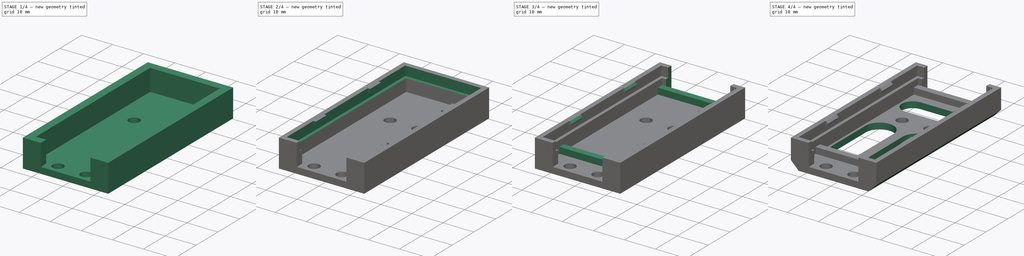
[diagram: build sequence overview — one tinted view per stage of 4, left to right]
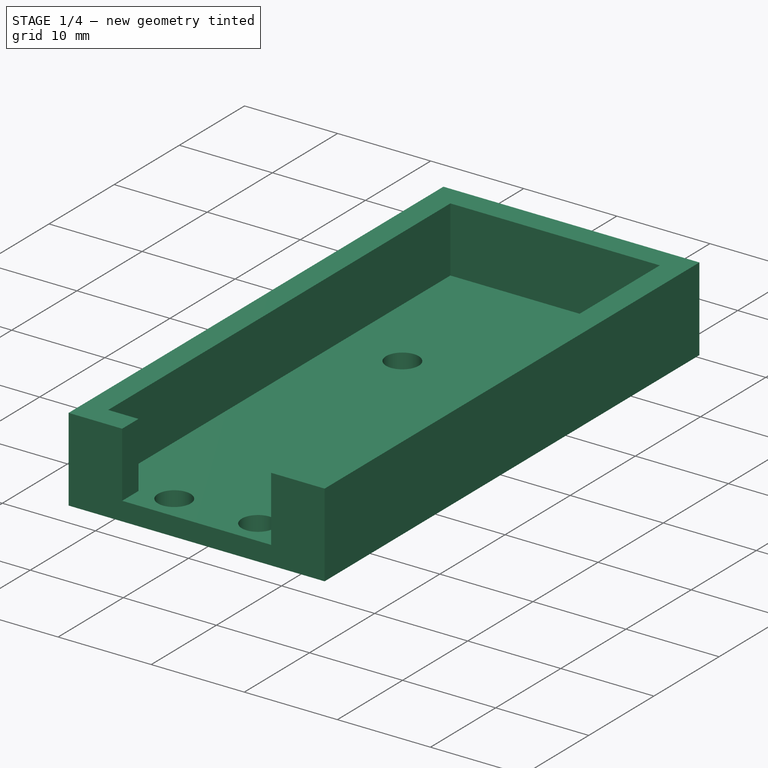
[diagram: stage 1 of 4 — iso view after this stage's code; geometry added in this stage tinted green]
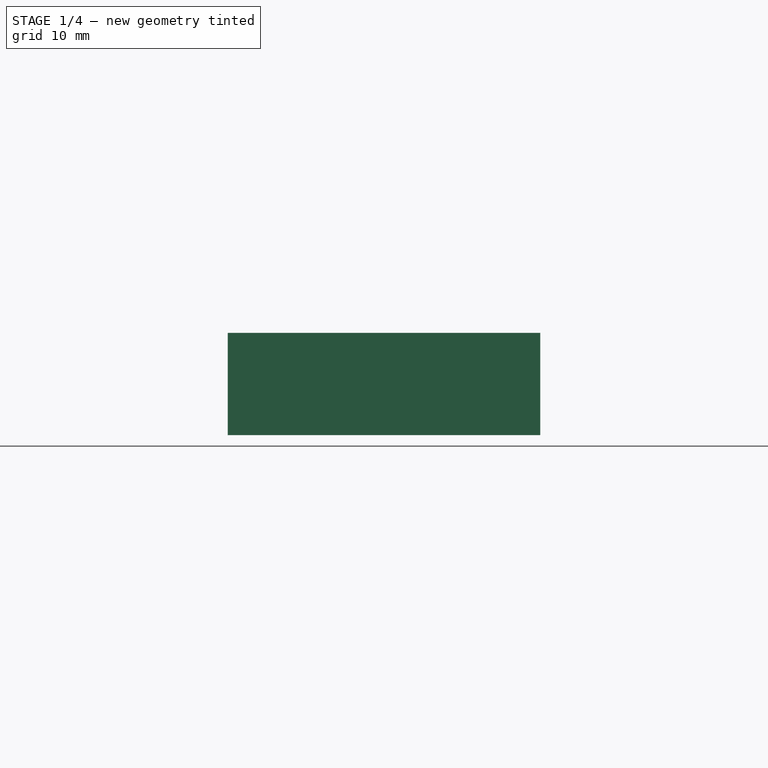
[diagram: stage 1 of 4 — front view after this stage's code; geometry added in this stage tinted green]
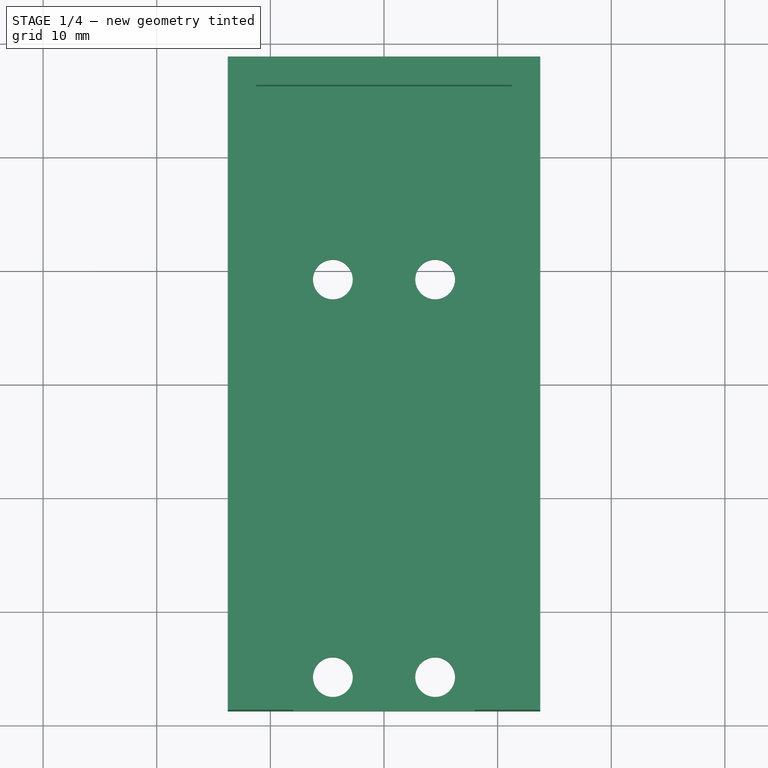
[diagram: stage 1 of 4 — top view after this stage's code; geometry added in this stage tinted green]
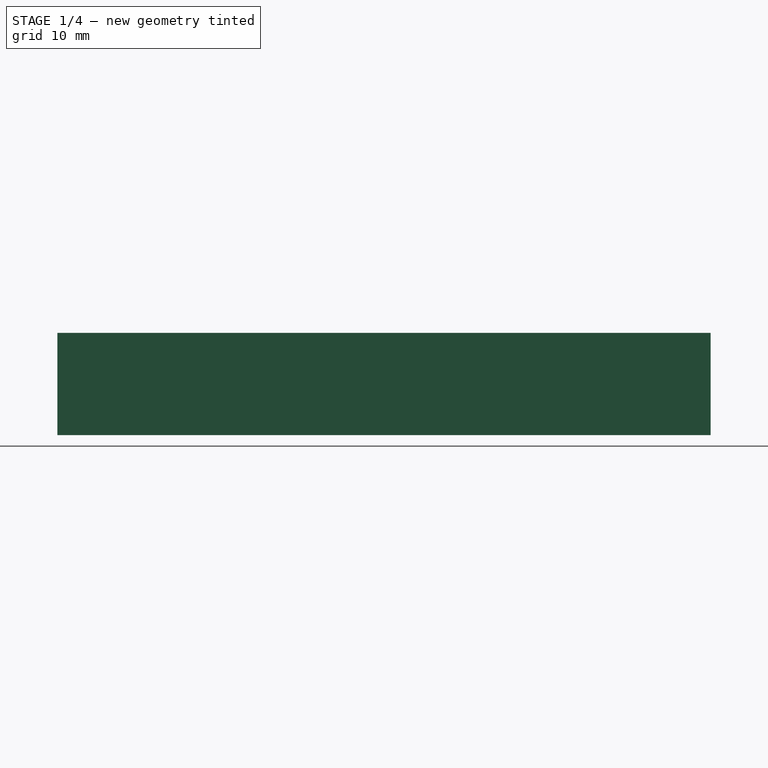
[diagram: stage 1 of 4 — right view after this stage's code; geometry added in this stage tinted green]
FCSTD DOCUMENT  (FreeCAD 0.17R13541 (Git))
Label: AB_dc-dc-holder
License: All rights reserved
LicenseURL: http://en.wikipedia.org/wiki/All_rights_reserved
objects: Sketcher::SketchObject×7, PartDesign::Pocket×4, PartDesign::Pad×3, PartDesign::Chamfer×2, PartDesign::Body×2
note: 25 computed .brp shape members not serialized (recipe doc carries the construction recipe); baked Part::Feature solids carry a one-line shape summary decoded from their .brp

FEATURE [Sketcher::SketchObject] Sketch
  MapMode = 5
  Support = -> [XY_Plane]
  sketch-geometry (12):
    g0: LineSegment StartX=-13.75 StartY=28.75 StartZ=0 EndX=13.75 EndY=28.75 EndZ=0
    g1: LineSegment StartX=13.75 StartY=28.75 StartZ=0 EndX=13.75 EndY=-28.75 EndZ=0
    g2: LineSegment StartX=-13.75 StartY=-28.75 StartZ=0 EndX=-13.75 EndY=28.75 EndZ=0
    g3: LineSegment [constr] StartX=-4.5 StartY=9.25 StartZ=0 EndX=4.5 EndY=9.25 EndZ=0
    g4: LineSegment [constr] StartX=4.5 StartY=9.25 StartZ=0 EndX=4.5 EndY=-25.75 EndZ=0
    g5: LineSegment [constr] StartX=4.5 StartY=-25.75 StartZ=0 EndX=-4.5 EndY=-25.75 EndZ=0
    g6: LineSegment [constr] StartX=-4.5 StartY=-25.75 StartZ=0 EndX=-4.5 EndY=9.25 EndZ=0
    g7: Circle CenterX=-4.5 CenterY=9.25 CenterZ=0 NormalX=0 NormalY=0 NormalZ=1 AngleXU=0 Radius=1.75
    g8: Circle CenterX=-4.5 CenterY=-25.75 CenterZ=0 NormalX=0 NormalY=0 NormalZ=1 AngleXU=0 Radius=1.75
    g9: Circle CenterX=4.5 CenterY=9.25 CenterZ=0 NormalX=0 NormalY=0 NormalZ=1 AngleXU=0 Radius=1.75
    g10: LineSegment StartX=13.75 StartY=-28.75 StartZ=0 EndX=-13.75 EndY=-28.75 EndZ=0
    g11: Circle CenterX=4.5 CenterY=-25.75 CenterZ=0 NormalX=0 NormalY=0 NormalZ=1 AngleXU=0 Radius=1.75
  constraints (31):
    c: Coincident(g0,g1)
    c: Coincident(g10,g2)
    c: Coincident(g2,g0)
    c: Horizontal(g0)
    c: Vertical(g1)
    c: Vertical(g2)
    c: Symmetric(g10,g0,g-1)
    c: Symmetric(g0,g0,g-2)
    c: DistanceX(g0,g0) = 27.5
    c: DistanceY(g1,g1) = 57.5
    c: Coincident(g3,g4)
    c: Coincident(g4,g5)
    c: Coincident(g5,g6)
    c: Coincident(g6,g3)
    c: Horizontal(g3)
    c: Horizontal(g5)
    c: Vertical(g4)
    c: Vertical(g6)
    c: Coincident(g7,g3)
    c: Coincident(g8,g5)
    c: Coincident(g9,g3)
    c: Equal(g8,g9)
    c: Radius(g9) = 1.75
    c: DistanceX(g4,g1) = 9.25
    c: DistanceY(g4,g1) = -3
    c: DistanceX(g5,g5) = 9
    c: DistanceY(g4,g4) = 35
    c: Radius(g7) = 1.75
    c: Coincident(g10,g1)
    c: Coincident(g11,g4)
    c: Equal(g7,g11)
FEATURE [PartDesign::Pad] Pad
  Length = 9
  Length2 = 100
  Profile = -> Sketch
  Type = 0
FEATURE [Sketcher::SketchObject] Sketch001
  MapMode = 5
  Placement = pos=(0,0,9) rot=(0,0,1;0rad)
  Support = -> [Pad]
  sketch-geometry (8):
    g0: LineSegment StartX=-11.25 StartY=26.25 StartZ=0 EndX=11.25 EndY=26.25 EndZ=0
    g1: LineSegment StartX=11.25 StartY=26.25 StartZ=0 EndX=11.25 EndY=-26.25 EndZ=0
    g2: LineSegment StartX=11.25 StartY=-26.25 StartZ=0 EndX=8 EndY=-26.25 EndZ=0
    g3: LineSegment StartX=-11.25 StartY=-26.25 StartZ=0 EndX=-11.25 EndY=26.25 EndZ=0
    g4: LineSegment StartX=-8 StartY=-26.25 StartZ=0 EndX=-11.25 EndY=-26.25 EndZ=0
    g5: LineSegment StartX=-8 StartY=-26.25 StartZ=0 EndX=-8 EndY=-29.25 EndZ=0
    g6: LineSegment StartX=-8 StartY=-29.25 StartZ=0 EndX=8 EndY=-29.25 EndZ=0
    g7: LineSegment StartX=8 StartY=-29.25 StartZ=0 EndX=8 EndY=-26.25 EndZ=0
  constraints (23):
    c: Coincident(g0,g1)
    c: Coincident(g1,g2)
    c: Coincident(g4,g3)
    c: Coincident(g3,g0)
    c: Horizontal(g0)
    c: Horizontal(g2)
    c: Vertical(g1)
    c: Vertical(g3)
    c: DistanceX(g0,g0) = 22.5  'H'
    c: DistanceY(g1,g1) = 52.5  'V'
    c: DistanceX(g0) = 11.25
    c: DistanceY(g0) = 26.25
    c: Tangent(g2,g4)
    c: Coincident(g4,g5)
    c: Vertical(g5)
    c: Coincident(g5,g6)
    c: Horizontal(g6)
    c: Coincident(g6,g7)
    c: Coincident(g7,g2)
    c: Vertical(g7)
    c: Symmetric(g4,g2,g-2)
    c: DistanceX(g6,g6) = 16
    c: DistanceY(g7,g7) = 3
FEATURE [PartDesign::Pocket] Pocket
  BaseFeature = -> Pad
  Length = 7
  Length2 = 100
  Profile = -> Sketch001
  Type = 0
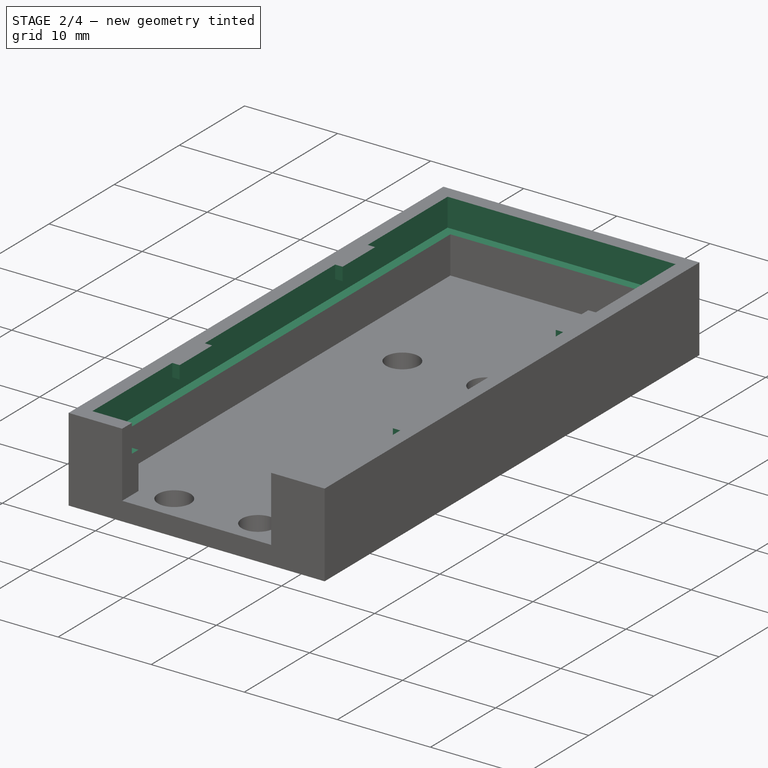
[diagram: stage 2 of 4 — iso view after this stage's code; geometry added in this stage tinted green]
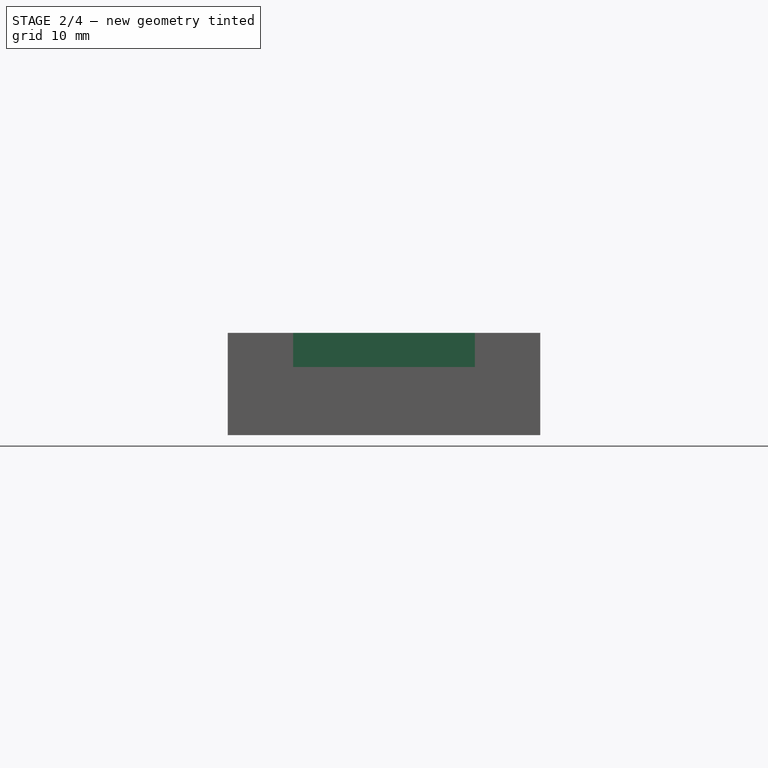
[diagram: stage 2 of 4 — front view after this stage's code; geometry added in this stage tinted green]
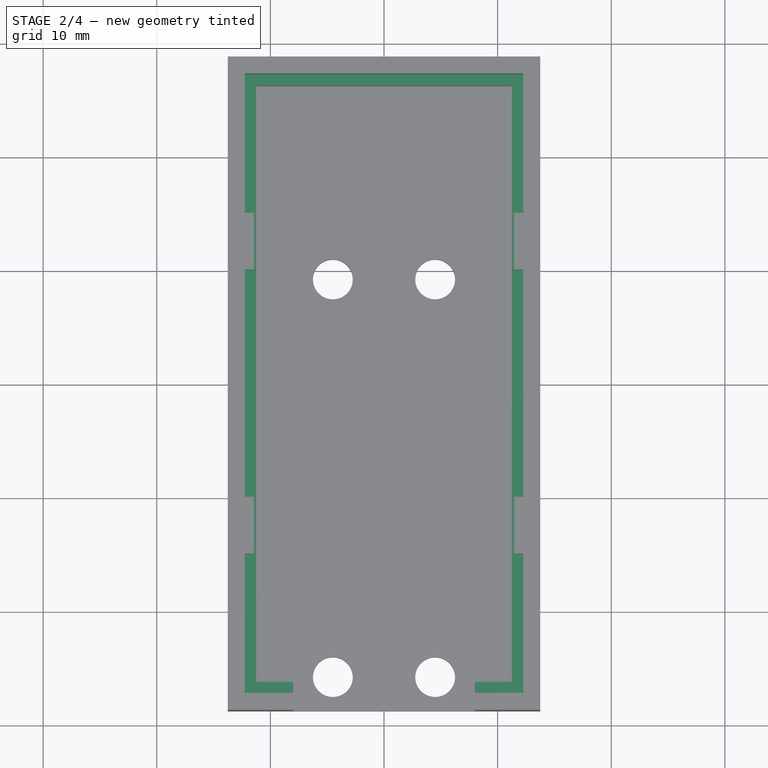
[diagram: stage 2 of 4 — top view after this stage's code; geometry added in this stage tinted green]
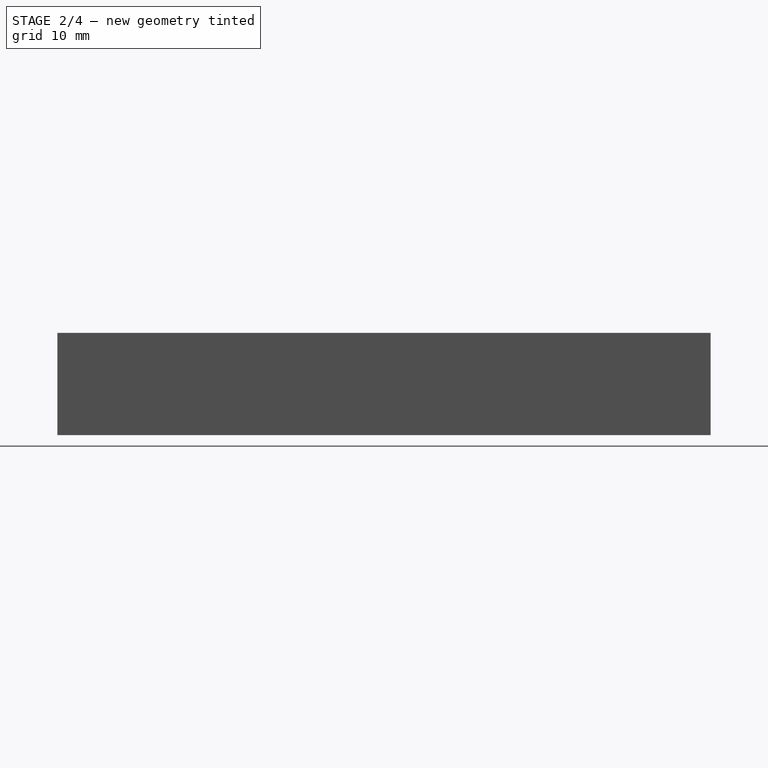
[diagram: stage 2 of 4 — right view after this stage's code; geometry added in this stage tinted green]
FEATURE [Sketcher::SketchObject] Sketch002
  MapMode = 5
  Placement = pos=(0,0,9) rot=(0,0,1;0rad)
  Support = -> [Pocket]
  sketch-geometry (4):
    g0: LineSegment StartX=-12.25 StartY=27.25 StartZ=0 EndX=12.25 EndY=27.25 EndZ=0
    g1: LineSegment StartX=12.25 StartY=27.25 StartZ=0 EndX=12.25 EndY=-27.25 EndZ=0
    g2: LineSegment StartX=12.25 StartY=-27.25 StartZ=0 EndX=-12.25 EndY=-27.25 EndZ=0
    g3: LineSegment StartX=-12.25 StartY=-27.25 StartZ=0 EndX=-12.25 EndY=27.25 EndZ=0
  constraints (12):
    c: Coincident(g0,g1)
    c: Coincident(g1,g2)
    c: Coincident(g2,g3)
    c: Coincident(g3,g0)
    c: Horizontal(g0)
    c: Horizontal(g2)
    c: Vertical(g1)
    c: Vertical(g3)
    c: Symmetric(g0,g0,g-2)
    c: Symmetric(g1,g0,g-1)
    c: DistanceX(g0,g0) = 24.5
    c: DistanceY(g1,g1) = 54.5
FEATURE [PartDesign::Pocket] Pocket001
  BaseFeature = -> Pocket
  Length = 3
  Length2 = 100
  Profile = -> Sketch002
  Type = 0
FEATURE [Sketcher::SketchObject] Sketch003
  MapMode = 5
  Placement = pos=(0,0,9) rot=(0,0,1;0rad)
  Support = -> [Pocket001]
  sketch-geometry (16):
    g0: LineSegment StartX=-12.25 StartY=15 StartZ=0 EndX=-11.45 EndY=15 EndZ=0
    g1: LineSegment StartX=-11.45 StartY=15 StartZ=0 EndX=-11.45 EndY=10 EndZ=0
    g2: LineSegment StartX=-11.45 StartY=10 StartZ=0 EndX=-12.25 EndY=10 EndZ=0
    g3: LineSegment StartX=-12.25 StartY=10 StartZ=0 EndX=-12.25 EndY=15 EndZ=0
    g4: LineSegment StartX=-12.25 StartY=-10 StartZ=0 EndX=-11.45 EndY=-10 EndZ=0
    g5: LineSegment StartX=-11.45 StartY=-10 StartZ=0 EndX=-11.45 EndY=-15 EndZ=0
    g6: LineSegment StartX=-11.45 StartY=-15 StartZ=0 EndX=-12.25 EndY=-15 EndZ=0
    g7: LineSegment StartX=-12.25 StartY=-15 StartZ=0 EndX=-12.25 EndY=-10 EndZ=0
    g8: LineSegment StartX=12.25 StartY=-10 StartZ=0 EndX=11.45 EndY=-10 EndZ=0
    g9: LineSegment StartX=11.45 StartY=-10 StartZ=0 EndX=11.45 EndY=-15 EndZ=0
    g10: LineSegment StartX=11.45 StartY=-15 StartZ=0 EndX=12.25 EndY=-15 EndZ=0
    g11: LineSegment StartX=12.25 StartY=-15 StartZ=0 EndX=12.25 EndY=-10 EndZ=0
    g12: LineSegment StartX=12.25 StartY=15 StartZ=0 EndX=11.45 EndY=15 EndZ=0
    g13: LineSegment StartX=11.45 StartY=15 StartZ=0 EndX=11.45 EndY=10 EndZ=0
    g14: LineSegment StartX=11.45 StartY=10 StartZ=0 EndX=12.25 EndY=10 EndZ=0
    g15: LineSegment StartX=12.25 StartY=10 StartZ=0 EndX=12.25 EndY=15 EndZ=0
  constraints (48):
    c: Coincident(g0,g1)
    c: Coincident(g1,g2)
    c: Coincident(g2,g3)
    c: Coincident(g3,g0)
    c: Horizontal(g0)
    c: Horizontal(g2)
    c: Vertical(g1)
    c: Vertical(g3)
    c: Coincident(g4,g5)
    c: Coincident(g5,g6)
    c: Coincident(g6,g7)
    c: Coincident(g7,g4)
    c: Horizontal(g4)
    c: Horizontal(g6)
    c: Vertical(g5)
    c: Vertical(g7)
    c: Coincident(g8,g9)
    c: Coincident(g9,g10)
    c: Coincident(g10,g11)
    c: Coincident(g11,g8)
    c: Horizontal(g8)
    c: Horizontal(g10)
    c: Vertical(g9)
    c: Vertical(g11)
    c: Coincident(g12,g13)
    c: Coincident(g13,g14)
    c: Coincident(g14,g15)
    c: Coincident(g15,g12)
    c: Horizontal(g12)
    c: Horizontal(g14)
    c: Vertical(g13)
    c: Vertical(g15)
    c: Horizontal(g0,g12)
    c: Vertical(g2,g4)
    c: Vertical(g8,g14)
    c: Horizontal(g5,g9)
    c: Equal(g7,g15)
    c: Equal(g15,g11)
    c: Equal(g11,g3)
    c: Equal(g0,g12)
    c: Equal(g12,g8)
    c: Equal(g8,g4)
    c: DistanceX(g0,g0) = 0.8
    c: DistanceY(g3,g3) = 5
    c: Symmetric(g0,g6,g-1)
    c: DistanceX(g0,g12) = 24.5
    c: Symmetric(g0,g12,g-2)
    c: DistanceY(g6,g0) = 30
FEATURE [PartDesign::Pad] Pad001
  BaseFeature = -> Pocket001
  Length = 1.4
  Length2 = 100
  Profile = -> Sketch003
  Reversed = true
  Type = 0
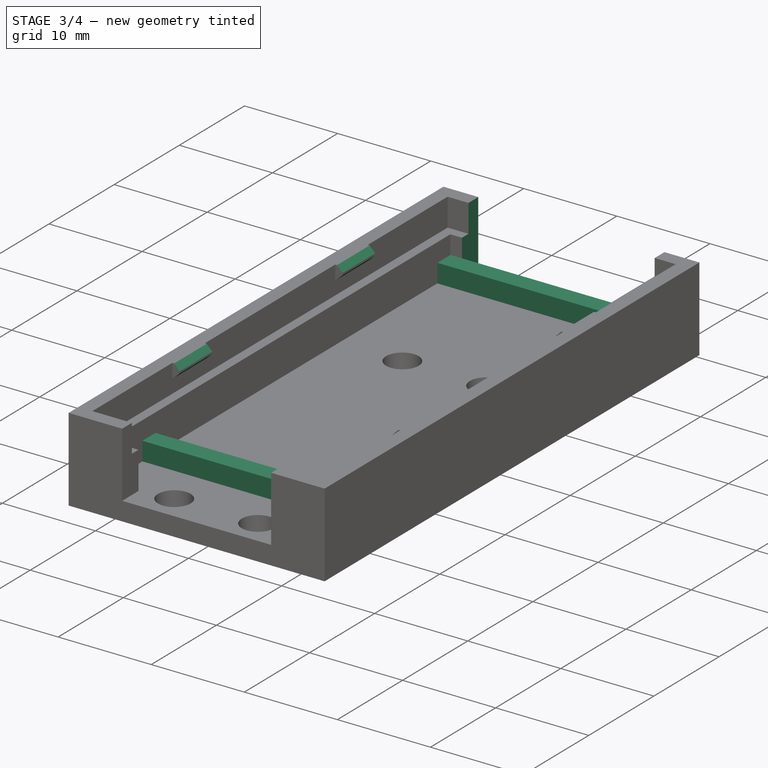
[diagram: stage 3 of 4 — iso view after this stage's code; geometry added in this stage tinted green]
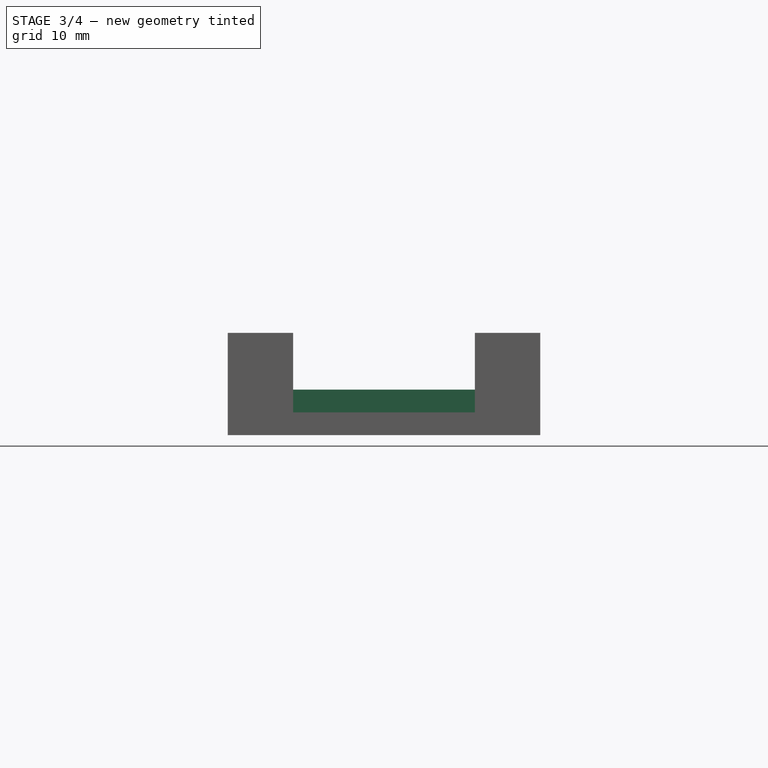
[diagram: stage 3 of 4 — front view after this stage's code; geometry added in this stage tinted green]
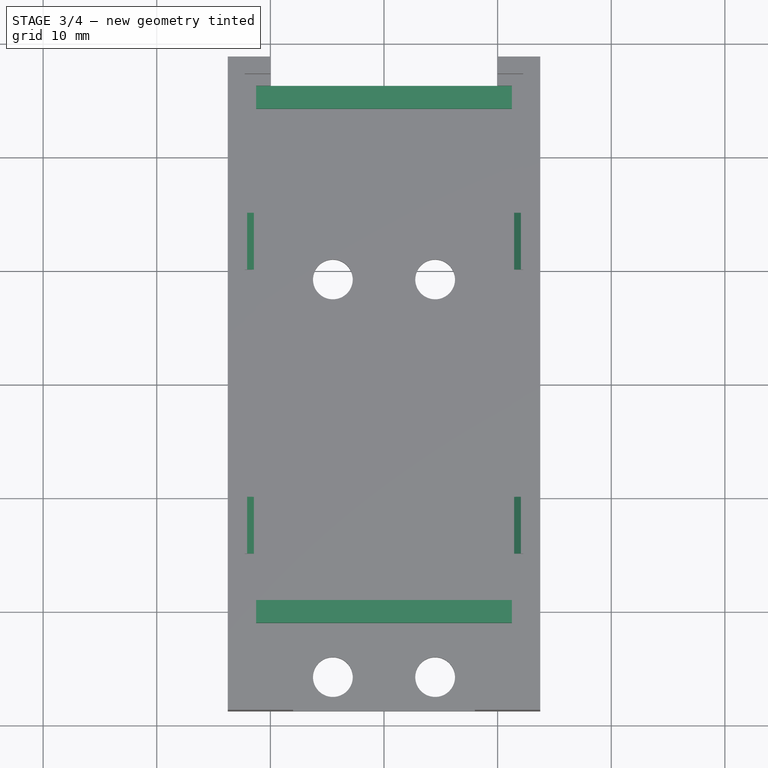
[diagram: stage 3 of 4 — top view after this stage's code; geometry added in this stage tinted green]
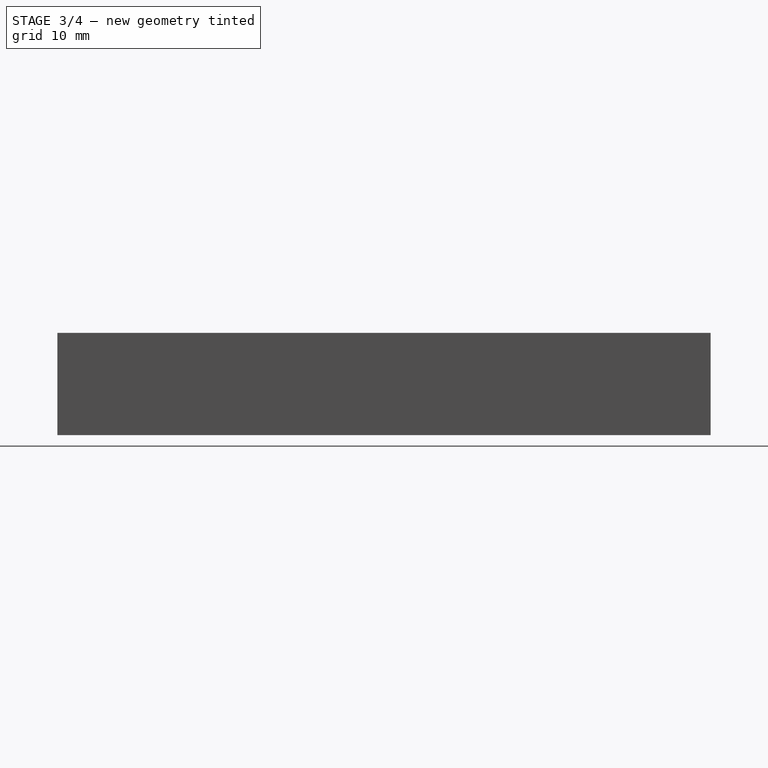
[diagram: stage 3 of 4 — right view after this stage's code; geometry added in this stage tinted green]
FEATURE [PartDesign::Chamfer] Chamfer
  Base = -> Pad001 [Edge59,Edge99,Edge62,Edge104,Edge75,Edge108,Edge78,Edge113]
  BaseFeature = -> Pad001
  Size = 0.6
FEATURE [Sketcher::SketchObject] Sketch004
  MapMode = 5
  Placement = pos=(0,0,9) rot=(0,0,1;0rad)
  Support = -> [Chamfer]
  sketch-geometry (4):
    g0: LineSegment StartX=-10 StartY=29.25 StartZ=0 EndX=10 EndY=29.25 EndZ=0
    g1: LineSegment StartX=10 StartY=29.25 StartZ=0 EndX=10 EndY=26.25 EndZ=0
    g2: LineSegment StartX=10 StartY=26.25 StartZ=0 EndX=-10 EndY=26.25 EndZ=0
    g3: LineSegment StartX=-10 StartY=26.25 StartZ=0 EndX=-10 EndY=29.25 EndZ=0
  constraints (12):
    c: Coincident(g0,g1)
    c: Coincident(g1,g2)
    c: Coincident(g2,g3)
    c: Coincident(g3,g0)
    c: Horizontal(g0)
    c: Horizontal(g2)
    c: Vertical(g1)
    c: Vertical(g3)
    c: Symmetric(g0,g0,g-2)
    c: DistanceY(g1,g1) = 3
    c: DistanceY(g1) = 26.25
    c: DistanceX(g0,g0) = 20
FEATURE [PartDesign::Pocket] Pocket002
  BaseFeature = -> Chamfer
  Length = 5
  Length2 = 100
  Profile = -> Sketch004
  Type = 1
FEATURE [Sketcher::SketchObject] Sketch005
  MapMode = 5
  Placement = pos=(0,0,2) rot=(0,0,1;0rad)
  Support = -> [Pocket002]
  sketch-geometry (8):
    g0: LineSegment StartX=-11.25 StartY=26.25 StartZ=0 EndX=11.25 EndY=26.25 EndZ=0
    g1: LineSegment StartX=11.25 StartY=26.25 StartZ=0 EndX=11.25 EndY=24.25 EndZ=0
    g2: LineSegment StartX=11.25 StartY=24.25 StartZ=0 EndX=-11.25 EndY=24.25 EndZ=0
    g3: LineSegment StartX=-11.25 StartY=24.25 StartZ=0 EndX=-11.25 EndY=26.25 EndZ=0
    g4: LineSegment StartX=-11.25 StartY=-21 StartZ=0 EndX=11.25 EndY=-21 EndZ=0
    g5: LineSegment StartX=11.25 StartY=-21 StartZ=0 EndX=11.25 EndY=-19 EndZ=0
    g6: LineSegment StartX=11.25 StartY=-19 StartZ=0 EndX=-11.25 EndY=-19 EndZ=0
    g7: LineSegment StartX=-11.25 StartY=-19 StartZ=0 EndX=-11.25 EndY=-21 EndZ=0
  constraints (24):
    c: Coincident(g0,g1)
    c: Coincident(g1,g2)
    c: Coincident(g2,g3)
    c: Coincident(g3,g0)
    c: Horizontal(g0)
    c: Horizontal(g2)
    c: Vertical(g1)
    c: Vertical(g3)
    c: Coincident(g4,g5)
    c: Coincident(g5,g6)
    c: Coincident(g6,g7)
    c: Coincident(g7,g4)
    c: Horizontal(g4)
    c: Horizontal(g6)
    c: Vertical(g5)
    c: Vertical(g7)
    c: Equal(g3,g7)
    c: Equal(g2,g4)
    c: DistanceX(g0,g0) = 22.5
    c: Symmetric(g0,g0,g-2)
    c: DistanceY(g1,g1) = 2
    c: Vertical(g1,g5)
    c: DistanceY(g5) = -19
    c: DistanceY(g0) = 26.25
FEATURE [PartDesign::Pad] Pad002
  BaseFeature = -> Pocket002
  Length = 2
  Length2 = 100
  Profile = -> Sketch005
  Type = 0
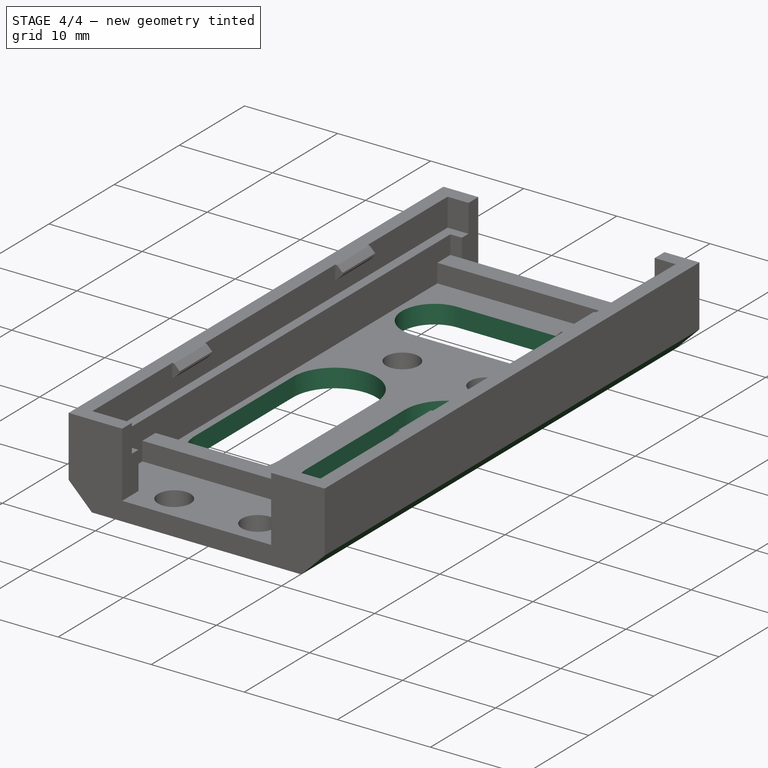
[diagram: stage 4 of 4 — iso view after this stage's code; geometry added in this stage tinted green]
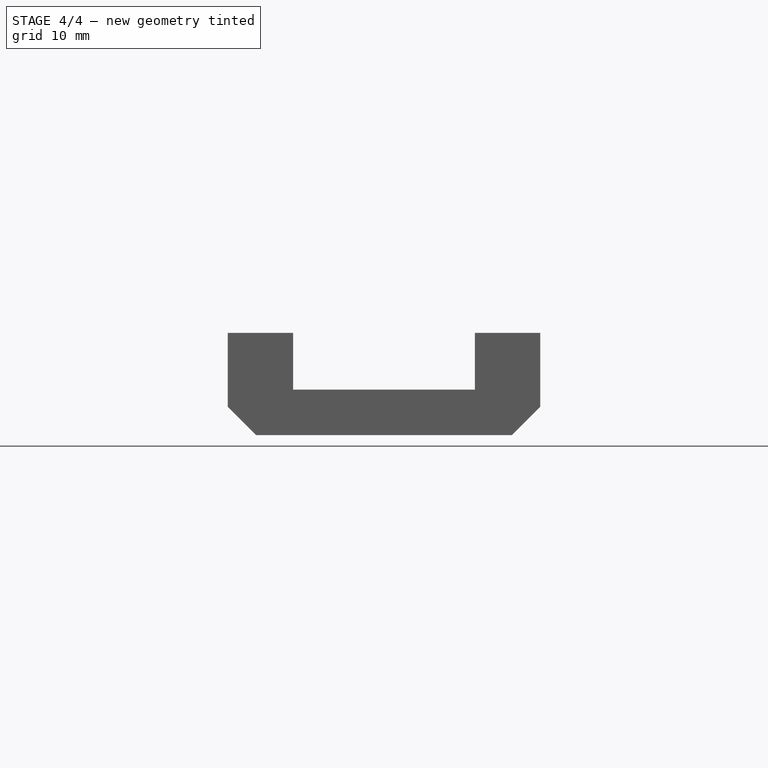
[diagram: stage 4 of 4 — front view after this stage's code; geometry added in this stage tinted green]
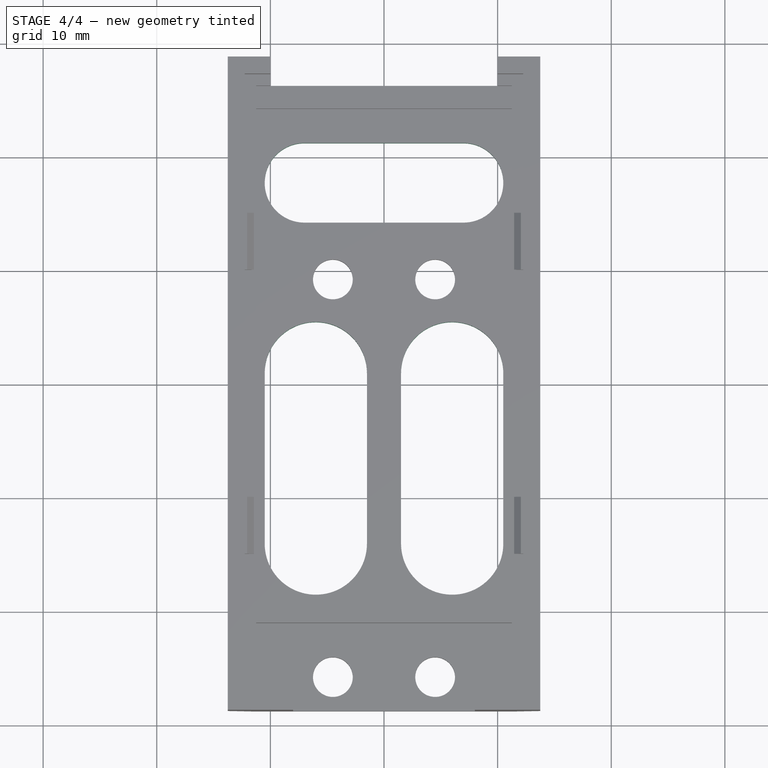
[diagram: stage 4 of 4 — top view after this stage's code; geometry added in this stage tinted green]
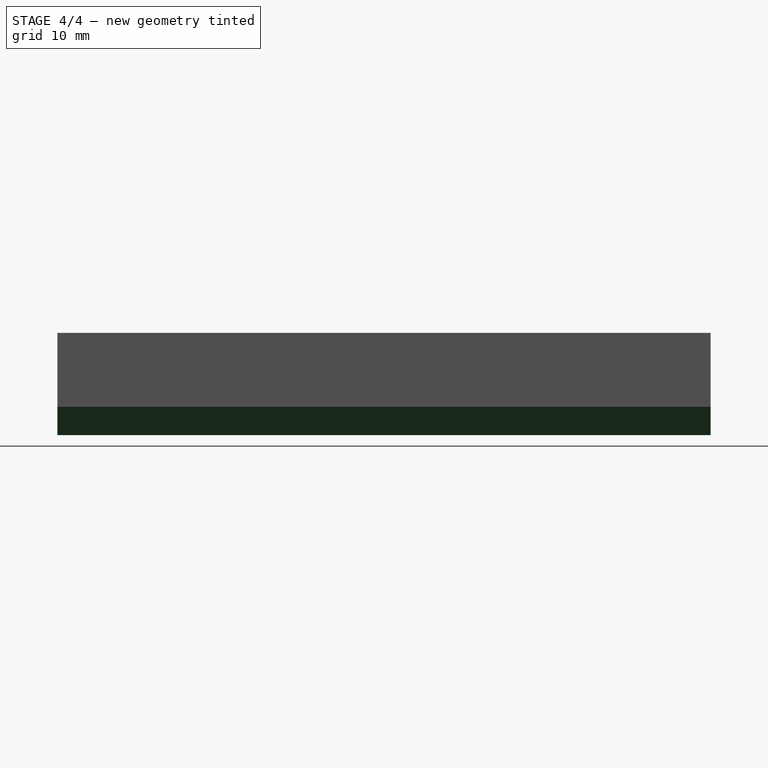
[diagram: stage 4 of 4 — right view after this stage's code; geometry added in this stage tinted green]
FEATURE [Sketcher::SketchObject] Sketch006
  MapMode = 5
  Placement = pos=(0,0,2) rot=(0,0,1;0rad)
  Support = -> [Pad002]
  sketch-geometry (12):
    g0: ArcOfCircle CenterX=-7 CenterY=17.75 CenterZ=0 NormalX=0 NormalY=0 NormalZ=1 AngleXU=0 Radius=3.5 StartAngle=1.5708 EndAngle=4.71239
    g1: ArcOfCircle CenterX=7 CenterY=17.75 CenterZ=0 NormalX=0 NormalY=0 NormalZ=1 AngleXU=0 Radius=3.5 StartAngle=4.71239 EndAngle=7.85398
    g2: LineSegment StartX=-7 StartY=14.25 StartZ=0 EndX=7 EndY=14.25 EndZ=0
    g3: LineSegment StartX=-7 StartY=21.25 StartZ=0 EndX=7 EndY=21.25 EndZ=0
    g4: ArcOfCircle CenterX=-6 CenterY=1 CenterZ=0 NormalX=0 NormalY=0 NormalZ=1 AngleXU=0 Radius=4.5 StartAngle=0 EndAngle=3.14159
    g5: ArcOfCircle CenterX=-6 CenterY=-14 CenterZ=0 NormalX=0 NormalY=0 NormalZ=1 AngleXU=0 Radius=4.5 StartAngle=3.14159 EndAngle=6.28319
    g6: LineSegment StartX=-10.5 StartY=1 StartZ=0 EndX=-10.5 EndY=-14 EndZ=0
    g7: LineSegment StartX=-1.5 StartY=1 StartZ=0 EndX=-1.5 EndY=-14 EndZ=0
    g8: ArcOfCircle CenterX=6 CenterY=1 CenterZ=0 NormalX=0 NormalY=0 NormalZ=1 AngleXU=0 Radius=4.5 StartAngle=0 EndAngle=3.14159
    g9: ArcOfCircle CenterX=6 CenterY=-14 CenterZ=0 NormalX=0 NormalY=0 NormalZ=1 AngleXU=0 Radius=4.5 StartAngle=3.14159 EndAngle=6.28319
    g10: LineSegment StartX=1.5 StartY=1 StartZ=0 EndX=1.5 EndY=-14 EndZ=0
    g11: LineSegment StartX=10.5 StartY=1 StartZ=0 EndX=10.5 EndY=-14 EndZ=0
  constraints (30):
    c: Tangent(g0,g3) = 1.5708
    c: Tangent(g0,g2) = -1.5708
    c: Tangent(g2,g1) = -1.5708
    c: Tangent(g3,g1) = 1.5708
    c: Horizontal(g2)
    c: Equal(g0,g1)
    c: Tangent(g4,g7) = 1.5708
    c: Tangent(g4,g6) = -1.5708
    c: Tangent(g6,g5) = -1.5708
    c: Tangent(g7,g5) = 1.5708
    c: Vertical(g6)
    c: Tangent(g8,g11) = 1.5708
    c: Tangent(g8,g10) = -1.5708
    c: Tangent(g10,g9) = -1.5708
    c: Tangent(g11,g9) = 1.5708
    c: Vertical(g10)
    c: Symmetric(g0,g1,g-2)
    c: Horizontal(g4,g8)
    c: Equal(g7,g10)
    c: Radius(g1) = 3.5
    c: DistanceY(g8,g1) = 16.75
    c: DistanceY(g1) = 17.75
    c: DistanceY(g7,g7) = 15
    c: DistanceX(g5,g9) = 21
    c: Equal(g4,g8)
    c: Vertical(g7)
    c: Vertical(g11)
    c: Radius(g8) = 4.5
    c: DistanceX(g0,g1) = 14
    c: Symmetric(g4,g8,g-2)
FEATURE [PartDesign::Pocket] Pocket003
  BaseFeature = -> Pad002
  Length = 5
  Length2 = 100
  Profile = -> Sketch006
  Type = 1
FEATURE [PartDesign::Chamfer] Chamfer001
  Base = -> Pocket003 [Edge56,Edge84]
  BaseFeature = -> Pocket003
  Size = 2.5
FEATURE [PartDesign::Body] Body
  Group = -> [Sketch,Pad,Sketch001,Pocket,Sketch002,Pocket001,Sketch003,Pad001,Chamfer,Sketch004,Pocket002,Sketch005,Pad002,Sketch006,Pocket003,Chamfer001]
  Origin = -> Origin
  Tip = -> Chamfer001
FEATURE [PartDesign::Body] Body001
  Origin = -> Origin001
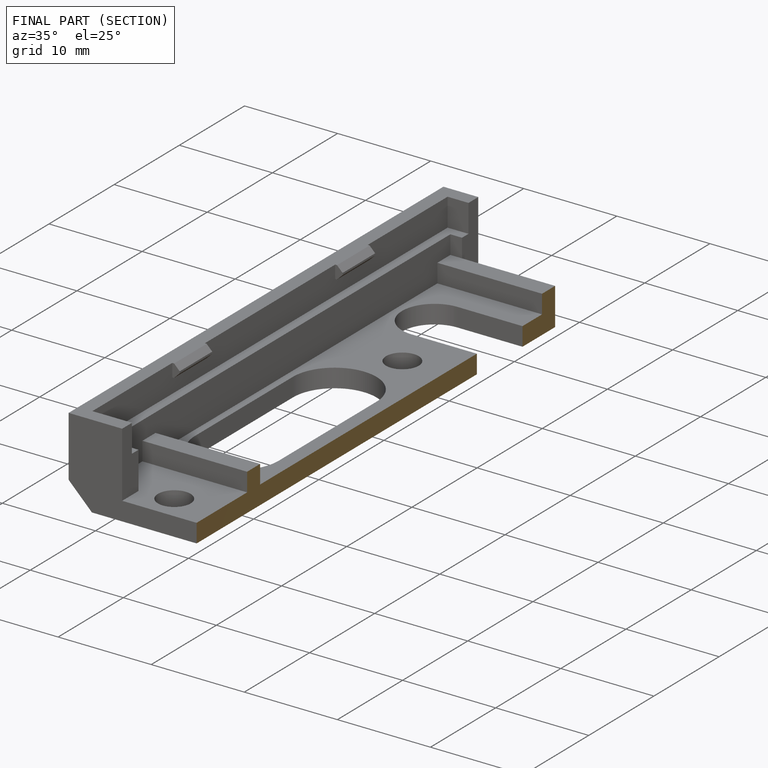
[diagram: finished part — half-section view (interior)]
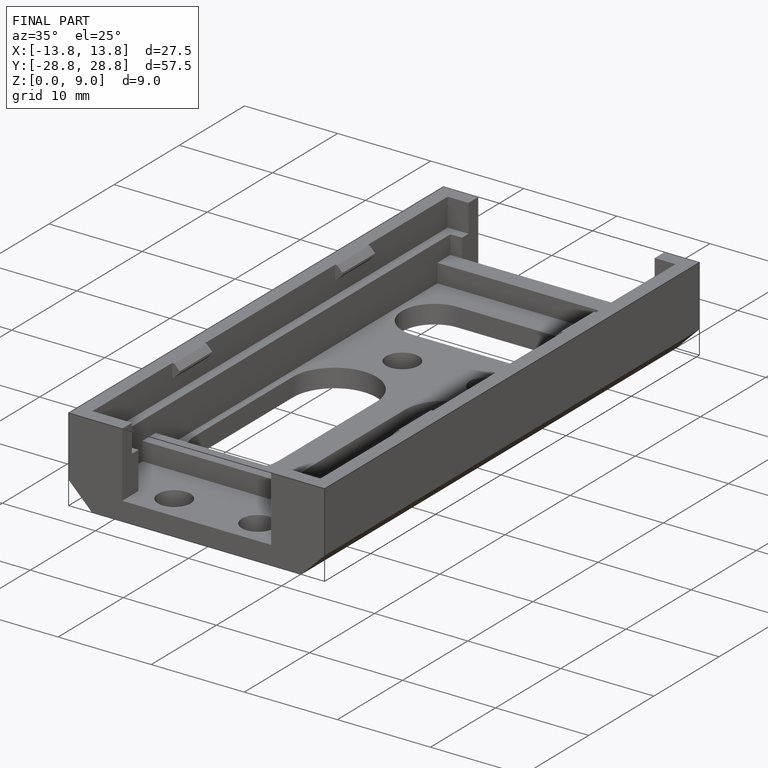
[diagram: finished part — iso view with bounding-box wireframe]
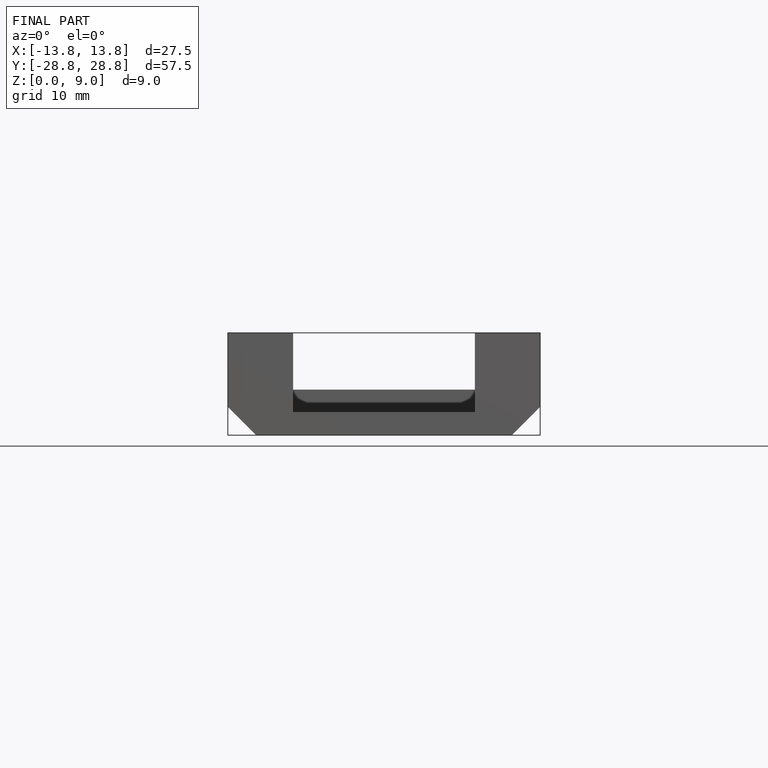
[diagram: finished part — front view with bounding-box wireframe]
